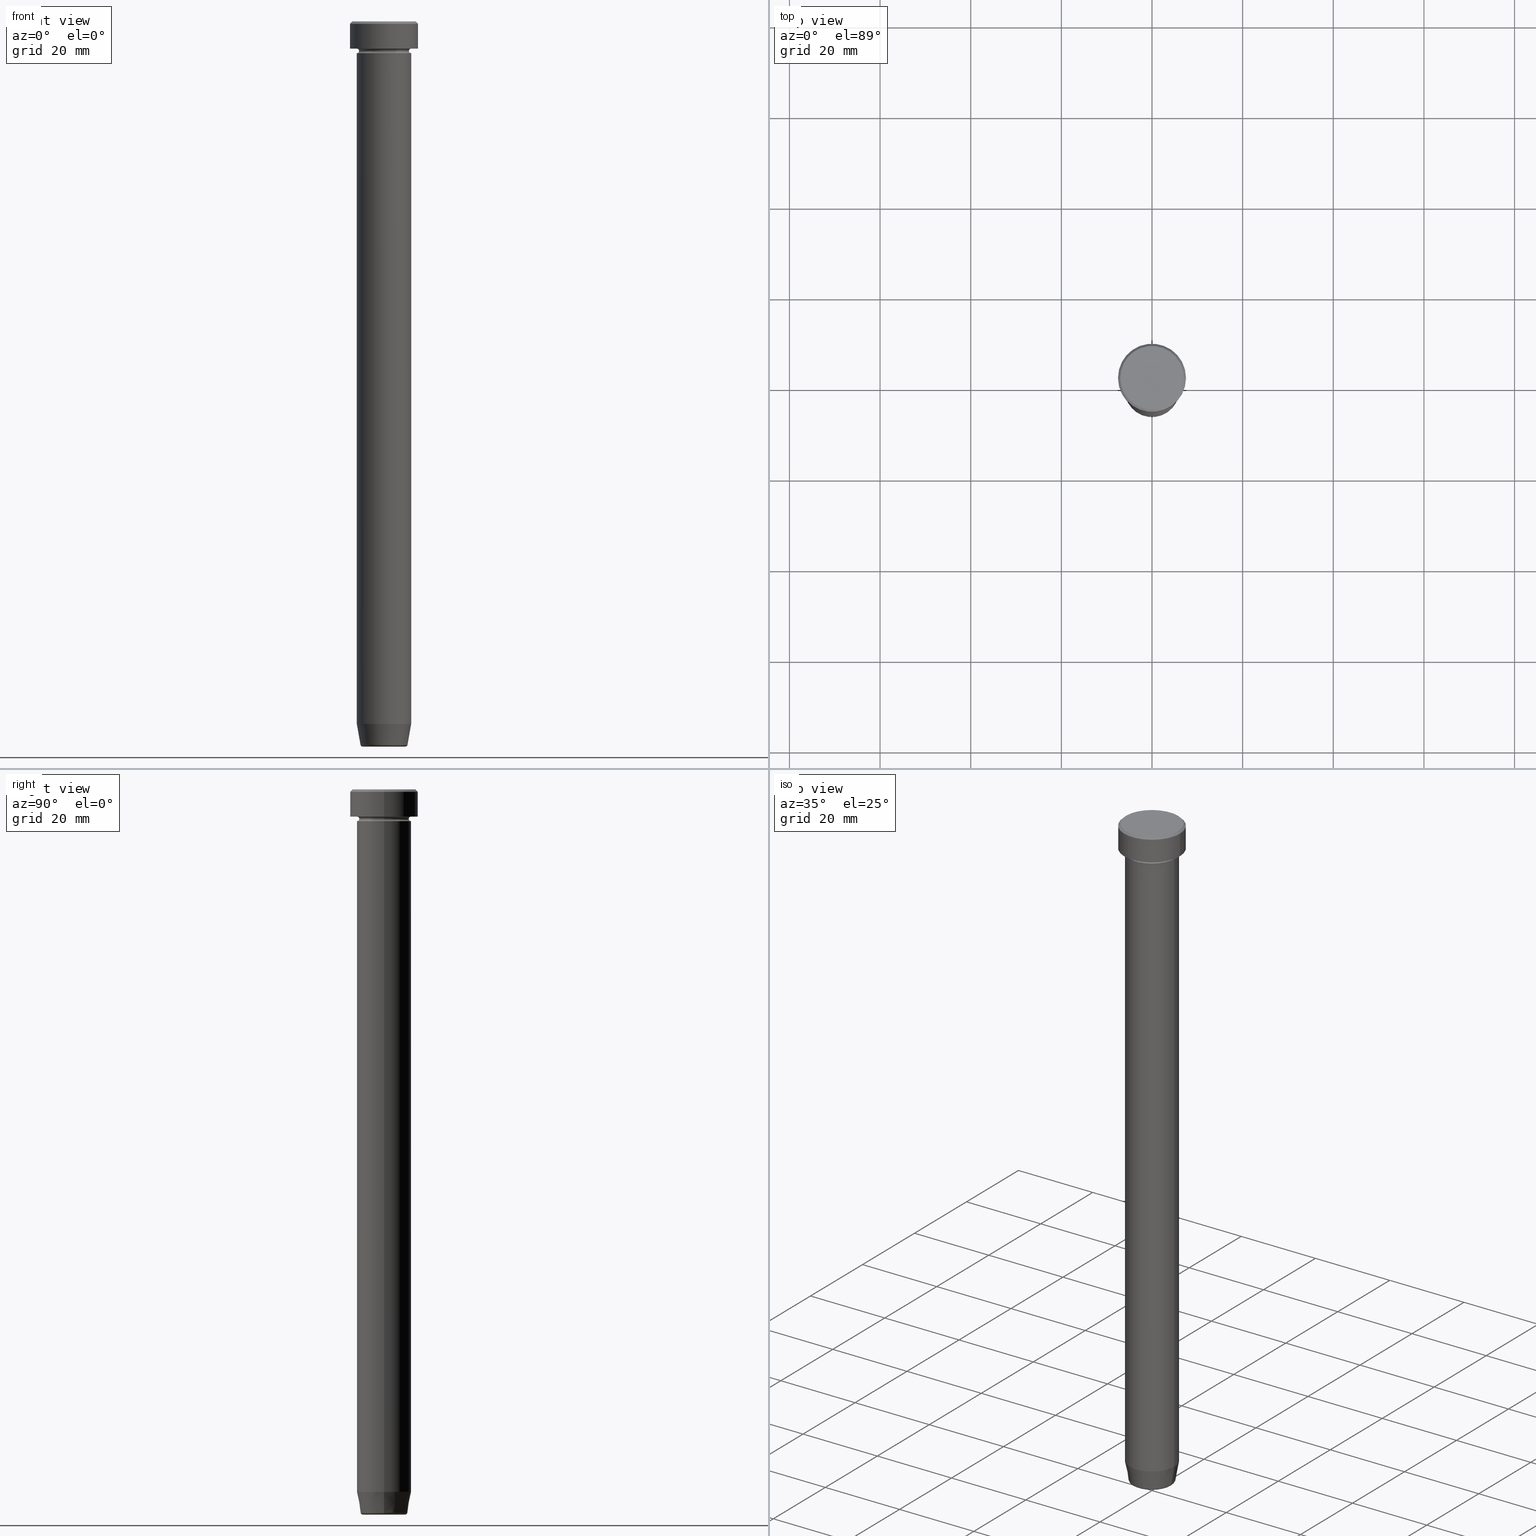
[diagram: canonical four-view strip — front | top / right | iso, engineering-drawing reading convention]
A machine part, canonical four-view strip (front | top / right | iso — engineering-drawing reading convention). The complete STEP part file that produces these views, byte-faithful:
ISO-10303-21;
HEADER;
FILE_DESCRIPTION (( 'STEP AP203' ),
    '1' );
FILE_NAME ('e89e.STEP',
    '2024-01-02T23:22:12',
    ( '' ),
    ( '' ),
    'SwSTEP 2.0',
    'SolidWorks 2019',
    '' );
FILE_SCHEMA (( 'CONFIG_CONTROL_DESIGN' ));
ENDSEC;

DATA;
#1 = DIRECTION ( 'NONE',  ( 0.000000000000000000, -0.000000000000000000, 1.000000000000000000 ) ) ;
#2 = CIRCLE ( 'NONE', #233, 7.500000000000000000 ) ;
#3 = CARTESIAN_POINT ( 'NONE',  ( -7.000000000000001776, 0.000000000000000000, 0.000000000000000000 ) ) ;
#4 = CIRCLE ( 'NONE', #353, 6.000000000000000000 ) ;
#5 = COORDINATED_UNIVERSAL_TIME_OFFSET ( 1, 0, .AHEAD. ) ;
#6 = CC_DESIGN_PERSON_AND_ORGANIZATION_ASSIGNMENT ( #59, #567, ( #46 ) ) ;
#7 = DATE_AND_TIME ( #149, #478 ) ;
#8 = DIRECTION ( 'NONE',  ( 1.000000000000000000, 0.000000000000000000, 0.000000000000000000 ) ) ;
#9 = SECURITY_CLASSIFICATION_LEVEL ( 'unclassified' ) ;
#10 = EDGE_CURVE ( 'NONE', #22, #585, #368, .T. ) ;
#11 = ORIENTED_EDGE ( 'NONE', *, *, #246, .T. ) ;
#12 = FACE_OUTER_BOUND ( 'NONE', #434, .T. ) ;
#13 = DATE_TIME_ROLE ( 'classification_date' ) ;
#14 = EDGE_LOOP ( 'NONE', ( #325, #348, #37, #310 ) ) ;
#15 = VERTEX_POINT ( 'NONE', #91 ) ;
#16 = VERTEX_POINT ( 'NONE', #272 ) ;
#17 = DIRECTION ( 'NONE',  ( 0.000000000000000000, 0.000000000000000000, -1.000000000000000000 ) ) ;
#18 = EDGE_CURVE ( 'NONE', #448, #388, #242, .T. ) ;
#19 = CC_DESIGN_APPROVAL ( #438, ( #344 ) ) ;
#20 = CIRCLE ( 'NONE', #324, 7.000000000000001776 ) ;
#21 = CARTESIAN_POINT ( 'NONE',  ( 5.118365096457672792, 0.000000000000000000, -159.9999999999999716 ) ) ;
#22 = VERTEX_POINT ( 'NONE', #446 ) ;
#23 = DIRECTION ( 'NONE',  ( -0.7071067811865469066, 0.000000000000000000, -0.7071067811865481278 ) ) ;
#24 = DIRECTION ( 'NONE',  ( -0.000000000000000000, -0.000000000000000000, 1.000000000000000000 ) ) ;
#25 = APPLICATION_CONTEXT ( 'configuration controlled 3d designs of mechanical parts and assemblies' ) ;
#26 = CARTESIAN_POINT ( 'NONE',  ( 0.000000000000000000, 0.000000000000000000, -154.9999999999999716 ) ) ;
#27 = CARTESIAN_POINT ( 'NONE',  ( 0.000000000000000000, 0.000000000000000000, 0.000000000000000000 ) ) ;
#28 = EDGE_CURVE ( 'NONE', #60, #16, #593, .T. ) ;
#29 = ORIENTED_EDGE ( 'NONE', *, *, #53, .F. ) ;
#30 = AXIS2_PLACEMENT_3D ( 'NONE', #320, #131, #42 ) ;
#31 = VERTEX_POINT ( 'NONE', #63 ) ;
#32 = CARTESIAN_POINT ( 'NONE',  ( 0.000000000000000000, 0.000000000000000000, -17.00000000000000000 ) ) ;
#33 = DIRECTION ( 'NONE',  ( 1.224646799147353207E-16, 1.000000000000000000, 0.000000000000000000 ) ) ;
#34 = PRODUCT_DEFINITION_SHAPE ( 'NONE', 'NONE',  #503 ) ;
#35 = ORIENTED_EDGE ( 'NONE', *, *, #416, .F. ) ;
#36 = CARTESIAN_POINT ( 'NONE',  ( 0.000000000000000000, 0.000000000000000000, -6.500000000000000888 ) ) ;
#37 = ORIENTED_EDGE ( 'NONE', *, *, #442, .T. ) ;
#38 = DIRECTION ( 'NONE',  ( -1.000000000000000000, 0.000000000000000000, 0.000000000000000000 ) ) ;
#39 = CARTESIAN_POINT ( 'NONE',  ( 0.000000000000000000, 0.000000000000000000, -6.500000000000000888 ) ) ;
#40 = ADVANCED_FACE ( 'NONE', ( #52 ), #43, .T. ) ;
#41 = DIRECTION ( 'NONE',  ( 1.000000000000000000, 0.000000000000000000, 0.000000000000000000 ) ) ;
#42 = DIRECTION ( 'NONE',  ( 1.000000000000000000, 0.000000000000000000, 0.000000000000000000 ) ) ;
#43 = TOROIDAL_SURFACE ( 'NONE', #401, 4.698815280869035327, 0.5000000000000000000 ) ;
#44 = CIRCLE ( 'NONE', #102, 6.000000000000000000 ) ;
#45 = APPROVAL ( #98, 'NEUR�EN�' ) ;
#46 = PRODUCT ( 'e89e', 'e89e', '', ( #470 ) ) ;
#47 = ORIENTED_EDGE ( 'NONE', *, *, #53, .T. ) ;
#48 = CARTESIAN_POINT ( 'NONE',  ( 6.000000000000000000, 7.347880794884119736E-16, -6.500000000000000888 ) ) ;
#49 = VERTEX_POINT ( 'NONE', #286 ) ;
#50 =( LENGTH_UNIT ( ) NAMED_UNIT ( * ) SI_UNIT ( .MILLI., .METRE. ) );
#51 = DIRECTION ( 'NONE',  ( -1.000000000000000000, 0.000000000000000000, 0.000000000000000000 ) ) ;
#52 = FACE_OUTER_BOUND ( 'NONE', #270, .T. ) ;
#53 = EDGE_CURVE ( 'NONE', #306, #565, #468, .T. ) ;
#54 = CALENDAR_DATE ( 2024, 3, 1 ) ;
#55 = AXIS2_PLACEMENT_3D ( 'NONE', #58, #241, #474 ) ;
#56 = TOROIDAL_SURFACE ( 'NONE', #79, 6.000000000000000000, 0.5000000000000000000 ) ;
#57 = CIRCLE ( 'NONE', #553, 0.5000000000000004441 ) ;
#58 = CARTESIAN_POINT ( 'NONE',  ( 6.000000000000000000, 0.000000000000000000, -6.500000000000000888 ) ) ;
#59 = PERSON_AND_ORGANIZATION ( #303, #77 ) ;
#60 = VERTEX_POINT ( 'NONE', #186 ) ;
#61 = COORDINATED_UNIVERSAL_TIME_OFFSET ( 1, 0, .AHEAD. ) ;
#62 = EDGE_CURVE ( 'NONE', #448, #165, #109, .T. ) ;
#63 = CARTESIAN_POINT ( 'NONE',  ( 7.000000000000001776, 8.878689293818310074E-16, 0.000000000000000000 ) ) ;
#64 = APPLICATION_CONTEXT ( 'configuration controlled 3d designs of mechanical parts and assemblies' ) ;
#65 = ORIENTED_EDGE ( 'NONE', *, *, #550, .T. ) ;
#66 = DIRECTION ( 'NONE',  ( 0.000000000000000000, 0.000000000000000000, 1.000000000000000000 ) ) ;
#67 = ORIENTED_EDGE ( 'NONE', *, *, #236, .F. ) ;
#68 = DIRECTION ( 'NONE',  ( 0.7071067811865469066, 8.659560562354925463E-17, -0.7071067811865481278 ) ) ;
#69 = ORIENTED_EDGE ( 'NONE', *, *, #89, .F. ) ;
#70 = PERSON_AND_ORGANIZATION_ROLE ( 'creator' ) ;
#71 = ORIENTED_EDGE ( 'NONE', *, *, #28, .T. ) ;
#72 = DIRECTION ( 'NONE',  ( -0.000000000000000000, -0.000000000000000000, 1.000000000000000000 ) ) ;
#73 = FACE_OUTER_BOUND ( 'NONE', #414, .T. ) ;
#74 = EDGE_LOOP ( 'NONE', ( #443, #580, #251, #69 ) ) ;
#75 = DIRECTION ( 'NONE',  ( -0.000000000000000000, -0.000000000000000000, 1.000000000000000000 ) ) ;
#76 = CARTESIAN_POINT ( 'NONE',  ( 0.000000000000000000, 0.000000000000000000, -7.000000000000000000 ) ) ;
#77 = ORGANIZATION ( 'NEUR�EN�', 'NEUR�EN�', '' ) ;
#78 = CIRCLE ( 'NONE', #554, 7.500000000000000000 ) ;
#79 = AXIS2_PLACEMENT_3D ( 'NONE', #150, #72, #249 ) ;
#80 = FACE_BOUND ( 'NONE', #182, .T. ) ;
#81 = DIRECTION ( 'NONE',  ( 0.000000000000000000, 0.000000000000000000, -1.000000000000000000 ) ) ;
#82 = DIRECTION ( 'NONE',  ( 1.000000000000000000, 0.000000000000000000, 0.000000000000000000 ) ) ;
#83 = EDGE_CURVE ( 'NONE', #250, #95, #377, .T. ) ;
#84 = DIRECTION ( 'NONE',  ( -0.000000000000000000, -0.000000000000000000, 1.000000000000000000 ) ) ;
#85 = CIRCLE ( 'NONE', #115, 5.500000000000000000 ) ;
#86 = ORIENTED_EDGE ( 'NONE', *, *, #10, .T. ) ;
#87 = AXIS2_PLACEMENT_3D ( 'NONE', #457, #326, #366 ) ;
#88 = LINE ( 'NONE', #479, #198 ) ;
#89 = EDGE_CURVE ( 'NONE', #585, #565, #424, .T. ) ;
#90 = DIRECTION ( 'NONE',  ( 0.000000000000000000, 0.000000000000000000, -1.000000000000000000 ) ) ;
#91 = CARTESIAN_POINT ( 'NONE',  ( 7.500000000000000000, 0.000000000000000000, -6.000000000000000000 ) ) ;
#92 = ORIENTED_EDGE ( 'NONE', *, *, #246, .F. ) ;
#93 = CLOSED_SHELL ( 'NONE', ( #40, #309, #183, #338, #202, #317, #289, #574 ) ) ;
#94 = AXIS2_PLACEMENT_3D ( 'NONE', #461, #552, #327 ) ;
#95 = VERTEX_POINT ( 'NONE', #323 ) ;
#96 = DIRECTION ( 'NONE',  ( -0.000000000000000000, -0.000000000000000000, 1.000000000000000000 ) ) ;
#97 = ADVANCED_FACE ( 'NONE', ( #261 ), #268, .T. ) ;
#98 = APPROVAL_STATUS ( 'not_yet_approved' ) ;
#99 = CARTESIAN_POINT ( 'NONE',  ( 0.000000000000000000, 0.000000000000000000, -159.9999999999999716 ) ) ;
#100 = PERSON_AND_ORGANIZATION ( #303, #77 ) ;
#101 = FACE_OUTER_BOUND ( 'NONE', #488, .T. ) ;
#102 = AXIS2_PLACEMENT_3D ( 'NONE', #356, #118, #534 ) ;
#103 = EDGE_CURVE ( 'NONE', #49, #599, #78, .T. ) ;
#104 = EDGE_LOOP ( 'NONE', ( #491, #439, #267, #376 ) ) ;
#105 = DIRECTION ( 'NONE',  ( -0.000000000000000000, -0.000000000000000000, 1.000000000000000000 ) ) ;
#106 = CARTESIAN_POINT ( 'NONE',  ( 0.000000000000000000, 0.000000000000000000, -0.4999999999999987232 ) ) ;
#107 = PERSON_AND_ORGANIZATION_ROLE ( 'design_supplier' ) ;
#108 = ORIENTED_EDGE ( 'NONE', *, *, #236, .T. ) ;
#109 = CIRCLE ( 'NONE', #257, 0.5000000000000004441 ) ;
#110 = CIRCLE ( 'NONE', #563, 7.500000000000000000 ) ;
#111 = EDGE_CURVE ( 'NONE', #203, #599, #125, .T. ) ;
#112 = CARTESIAN_POINT ( 'NONE',  ( 0.000000000000000000, 0.000000000000000000, -6.000000000000000000 ) ) ;
#113 = EDGE_LOOP ( 'NONE', ( #231, #472 ) ) ;
#114 = FACE_OUTER_BOUND ( 'NONE', #412, .T. ) ;
#115 = AXIS2_PLACEMENT_3D ( 'NONE', #36, #159, #584 ) ;
#116 = AXIS2_PLACEMENT_3D ( 'NONE', #413, #130, #508 ) ;
#117 = ORIENTED_EDGE ( 'NONE', *, *, #103, .T. ) ;
#118 = DIRECTION ( 'NONE',  ( -0.000000000000000000, -0.000000000000000000, 1.000000000000000000 ) ) ;
#119 = ADVANCED_FACE ( 'NONE', ( #295 ), #579, .T. ) ;
#120 = CARTESIAN_POINT ( 'NONE',  ( 0.000000000000000000, 0.000000000000000000, -159.5868240888334242 ) ) ;
#121 = ORIENTED_EDGE ( 'NONE', *, *, #18, .F. ) ;
#122 = DIRECTION ( 'NONE',  ( -0.000000000000000000, -0.000000000000000000, 1.000000000000000000 ) ) ;
#123 = CARTESIAN_POINT ( 'NONE',  ( -7.500000000000000000, 9.184850993605147944E-16, 0.000000000000000000 ) ) ;
#124 = DIRECTION ( 'NONE',  ( -0.000000000000000000, -0.000000000000000000, 1.000000000000000000 ) ) ;
#125 = LINE ( 'NONE', #123, #527 ) ;
#126 = CC_DESIGN_DATE_AND_TIME_ASSIGNMENT ( #426, #475, ( #503 ) ) ;
#127 = AXIS2_PLACEMENT_3D ( 'NONE', #32, #577, #201 ) ;
#128 = ORIENTED_EDGE ( 'NONE', *, *, #392, .T. ) ;
#129 = ORIENTED_EDGE ( 'NONE', *, *, #157, .F. ) ;
#130 = DIRECTION ( 'NONE',  ( -0.000000000000000000, -0.000000000000000000, 1.000000000000000000 ) ) ;
#131 = DIRECTION ( 'NONE',  ( -0.000000000000000000, -0.000000000000000000, 1.000000000000000000 ) ) ;
#132 = DIRECTION ( 'NONE',  ( -0.000000000000000000, -0.000000000000000000, 1.000000000000000000 ) ) ;
#133 = CIRCLE ( 'NONE', #545, 6.000000000000000000 ) ;
#134 = CIRCLE ( 'NONE', #127, 6.000000000000000000 ) ;
#135 = LINE ( 'NONE', #315, #511 ) ;
#136 = EDGE_CURVE ( 'NONE', #306, #60, #85, .T. ) ;
#137 = SHAPE_DEFINITION_REPRESENTATION ( #34, #189 ) ;
#138 = DIRECTION ( 'NONE',  ( -1.000000000000000000, 0.000000000000000000, -0.000000000000000000 ) ) ;
#139 = ORIENTED_EDGE ( 'NONE', *, *, #153, .F. ) ;
#140 = EDGE_CURVE ( 'NONE', #388, #250, #490, .T. ) ;
#141 = PERSON_AND_ORGANIZATION_ROLE ( 'creator' ) ;
#142 = CC_DESIGN_SECURITY_CLASSIFICATION ( #291, ( #344 ) ) ;
#143 = DESIGN_CONTEXT ( 'detailed design', #64, 'design' ) ;
#144 = CARTESIAN_POINT ( 'NONE',  ( -6.000000000000000000, 7.347880794884119736E-16, 0.000000000000000000 ) ) ;
#145 = CIRCLE ( 'NONE', #199, 6.000000000000000000 ) ;
#146 = APPROVAL_DATE_TIME ( #7, #560 ) ;
#147 = ORIENTED_EDGE ( 'NONE', *, *, #10, .F. ) ;
#148 = DIRECTION ( 'NONE',  ( 1.000000000000000000, 0.000000000000000000, 0.000000000000000000 ) ) ;
#149 = CALENDAR_DATE ( 2024, 3, 1 ) ;
#150 = CARTESIAN_POINT ( 'NONE',  ( 0.000000000000000000, 0.000000000000000000, -6.500000000000000888 ) ) ;
#151 = DIRECTION ( 'NONE',  ( -0.000000000000000000, -0.000000000000000000, 1.000000000000000000 ) ) ;
#152 = AXIS2_PLACEMENT_3D ( 'NONE', #245, #539, #340 ) ;
#153 = EDGE_CURVE ( 'NONE', #250, #165, #322, .T. ) ;
#154 = ORIENTED_EDGE ( 'NONE', *, *, #83, .T. ) ;
#155 = ORIENTED_EDGE ( 'NONE', *, *, #454, .T. ) ;
#156 = CARTESIAN_POINT ( 'NONE',  ( -6.000000000000000000, 7.347880794884119736E-16, -6.500000000000000888 ) ) ;
#157 = EDGE_CURVE ( 'NONE', #168, #565, #133, .T. ) ;
#158 = CARTESIAN_POINT ( 'NONE',  ( 0.000000000000000000, 0.000000000000000000, -0.4999999999999987232 ) ) ;
#159 = DIRECTION ( 'NONE',  ( -0.000000000000000000, -0.000000000000000000, 1.000000000000000000 ) ) ;
#160 = AXIS2_PLACEMENT_3D ( 'NONE', #99, #90, #365 ) ;
#161 = ORIENTED_EDGE ( 'NONE', *, *, #516, .F. ) ;
#162 = DIRECTION ( 'NONE',  ( -0.000000000000000000, -0.000000000000000000, 1.000000000000000000 ) ) ;
#163 = CARTESIAN_POINT ( 'NONE',  ( 0.000000000000000000, 0.000000000000000000, -17.00000000000000000 ) ) ;
#164 = CARTESIAN_POINT ( 'NONE',  ( 0.000000000000000000, 0.000000000000000000, 0.000000000000000000 ) ) ;
#165 = VERTEX_POINT ( 'NONE', #352 ) ;
#166 = DIRECTION ( 'NONE',  ( 1.000000000000000000, 0.000000000000000000, 0.000000000000000000 ) ) ;
#167 = LOCAL_TIME ( 0, 22, 12.00000000000000000, #61 ) ;
#168 = VERTEX_POINT ( 'NONE', #214 ) ;
#169 = AXIS2_PLACEMENT_3D ( 'NONE', #542, #124, #347 ) ;
#170 = ORIENTED_EDGE ( 'NONE', *, *, #173, .T. ) ;
#171 = PLANE ( 'NONE',  #500 ) ;
#172 = ORIENTED_EDGE ( 'NONE', *, *, #471, .T. ) ;
#173 = EDGE_CURVE ( 'NONE', #203, #15, #2, .T. ) ;
#174 = DIRECTION ( 'NONE',  ( -1.000000000000000000, 0.000000000000000000, -0.000000000000000000 ) ) ;
#175 = LOCAL_TIME ( 0, 22, 12.00000000000000000, #519 ) ;
#176 = DIRECTION ( 'NONE',  ( 0.000000000000000000, 0.000000000000000000, -1.000000000000000000 ) ) ;
#177 = VECTOR ( 'NONE', #578, 999.9999999999998863 ) ;
#178 = LOCAL_TIME ( 0, 22, 12.00000000000000000, #187 ) ;
#179 = CARTESIAN_POINT ( 'NONE',  ( 0.000000000000000000, 6.000000000000000000, -17.00000000000000000 ) ) ;
#180 = CARTESIAN_POINT ( 'NONE',  ( 0.000000000000000000, 0.000000000000000000, -159.4999999999999716 ) ) ;
#181 = PERSON_AND_ORGANIZATION ( #303, #77 ) ;
#182 = EDGE_LOOP ( 'NONE', ( #155, #108 ) ) ;
#183 = ADVANCED_FACE ( 'NONE', ( #441 ), #205, .T. ) ;
#184 = COORDINATED_UNIVERSAL_TIME_OFFSET ( 1, 0, .AHEAD. ) ;
#185 = ORIENTED_EDGE ( 'NONE', *, *, #89, .T. ) ;
#186 = CARTESIAN_POINT ( 'NONE',  ( -5.500000000000000000, 7.041719095097280880E-16, -6.500000000000000888 ) ) ;
#187 = COORDINATED_UNIVERSAL_TIME_OFFSET ( 1, 0, .AHEAD. ) ;
#188 = AXIS2_PLACEMENT_3D ( 'NONE', #357, #342, #290 ) ;
#189 = ADVANCED_BREP_SHAPE_REPRESENTATION ( 'e89e', ( #280, #498, #447 ), #370 ) ;
#190 = VECTOR ( 'NONE', #23, 1000.000000000000114 ) ;
#191 = CARTESIAN_POINT ( 'NONE',  ( 6.000000000000000000, 0.000000000000000000, 0.000000000000000000 ) ) ;
#192 = ORIENTED_EDGE ( 'NONE', *, *, #136, .T. ) ;
#193 = EDGE_LOOP ( 'NONE', ( #591, #238, #483, #316 ) ) ;
#194 = DATE_AND_TIME ( #380, #167 ) ;
#195 = ADVANCED_FACE ( 'NONE', ( #445 ), #402, .T. ) ;
#196 = VERTEX_POINT ( 'NONE', #540 ) ;
#197 = CARTESIAN_POINT ( 'NONE',  ( 4.698815280869035327, 0.000000000000000000, -159.9999999999999716 ) ) ;
#198 = VECTOR ( 'NONE', #68, 1000.000000000000114 ) ;
#199 = AXIS2_PLACEMENT_3D ( 'NONE', #112, #122, #489 ) ;
#200 = ORIENTED_EDGE ( 'NONE', *, *, #596, .T. ) ;
#201 = DIRECTION ( 'NONE',  ( 1.000000000000000000, 0.000000000000000000, 0.000000000000000000 ) ) ;
#202 = ADVANCED_FACE ( 'NONE', ( #73 ), #308, .T. ) ;
#203 = VERTEX_POINT ( 'NONE', #543 ) ;
#204 = DIRECTION ( 'NONE',  ( -0.000000000000000000, -0.000000000000000000, 1.000000000000000000 ) ) ;
#205 = CYLINDRICAL_SURFACE ( 'NONE', #223, 6.000000000000000000 ) ;
#206 = ORIENTED_EDGE ( 'NONE', *, *, #544, .T. ) ;
#207 = DIRECTION ( 'NONE',  ( -0.000000000000000000, -0.000000000000000000, 1.000000000000000000 ) ) ;
#208 = CC_DESIGN_APPROVAL ( #560, ( #503 ) ) ;
#209 = DIRECTION ( 'NONE',  ( 1.000000000000000000, 0.000000000000000000, 0.000000000000000000 ) ) ;
#210 = CIRCLE ( 'NONE', #556, 5.191219157375138060 ) ;
#211 = AXIS2_PLACEMENT_3D ( 'NONE', #163, #204, #307 ) ;
#212 = CARTESIAN_POINT ( 'NONE',  ( -6.000000000000000000, 0.000000000000000000, -6.500000000000000888 ) ) ;
#213 = DIRECTION ( 'NONE',  ( -0.000000000000000000, -0.000000000000000000, 1.000000000000000000 ) ) ;
#214 = CARTESIAN_POINT ( 'NONE',  ( -6.000000000000000000, 7.347880794884119736E-16, -7.000000000000000000 ) ) ;
#215 = CARTESIAN_POINT ( 'NONE',  ( 0.000000000000000000, 0.000000000000000000, -17.00000000000000000 ) ) ;
#216 = DIRECTION ( 'NONE',  ( 1.000000000000000000, 0.000000000000000000, 0.000000000000000000 ) ) ;
#217 = EDGE_CURVE ( 'NONE', #31, #49, #88, .T. ) ;
#218 = DIRECTION ( 'NONE',  ( -0.000000000000000000, -0.000000000000000000, 1.000000000000000000 ) ) ;
#219 = ORIENTED_EDGE ( 'NONE', *, *, #157, .T. ) ;
#220 = ORIENTED_EDGE ( 'NONE', *, *, #422, .F. ) ;
#221 = FACE_OUTER_BOUND ( 'NONE', #14, .T. ) ;
#222 = FACE_OUTER_BOUND ( 'NONE', #399, .T. ) ;
#223 = AXIS2_PLACEMENT_3D ( 'NONE', #27, #84, #263 ) ;
#224 = AXIS2_PLACEMENT_3D ( 'NONE', #371, #363, #549 ) ;
#225 = CARTESIAN_POINT ( 'NONE',  ( -6.000000000000000000, 7.347880794884119736E-16, -17.00000000000000000 ) ) ;
#226 = FACE_OUTER_BOUND ( 'NONE', #548, .T. ) ;
#227 = ADVANCED_FACE ( 'NONE', ( #12 ), #385, .T. ) ;
#228 = CARTESIAN_POINT ( 'NONE',  ( -7.500000000000000000, 9.184850993605147944E-16, -0.4999999999999987232 ) ) ;
#229 = CARTESIAN_POINT ( 'NONE',  ( -5.191219157375138060, 6.852645359818000008E-16, -159.5868240888334242 ) ) ;
#230 = CARTESIAN_POINT ( 'NONE',  ( 4.698815280869035327, 0.000000000000000000, -159.4999999999999716 ) ) ;
#231 = ORIENTED_EDGE ( 'NONE', *, *, #397, .F. ) ;
#232 = CARTESIAN_POINT ( 'NONE',  ( 0.000000000000000000, 0.000000000000000000, -17.00000000000000000 ) ) ;
#233 = AXIS2_PLACEMENT_3D ( 'NONE', #305, #24, #82 ) ;
#234 = PERSON_AND_ORGANIZATION ( #303, #77 ) ;
#235 = VECTOR ( 'NONE', #294, 1000.000000000000000 ) ;
#236 = EDGE_CURVE ( 'NONE', #196, #16, #492, .T. ) ;
#237 = VERTEX_POINT ( 'NONE', #3 ) ;
#238 = ORIENTED_EDGE ( 'NONE', *, *, #111, .T. ) ;
#239 = CC_DESIGN_PERSON_AND_ORGANIZATION_ASSIGNMENT ( #100, #107, ( #344 ) ) ;
#240 = DIRECTION ( 'NONE',  ( 0.000000000000000000, -1.000000000000000000, 0.000000000000000000 ) ) ;
#241 = DIRECTION ( 'NONE',  ( 0.000000000000000000, -1.000000000000000000, 0.000000000000000000 ) ) ;
#242 = CIRCLE ( 'NONE', #570, 4.698815280869035327 ) ;
#243 = FACE_OUTER_BOUND ( 'NONE', #581, .T. ) ;
#244 = VECTOR ( 'NONE', #162, 1000.000000000000000 ) ;
#245 = CARTESIAN_POINT ( 'NONE',  ( 0.000000000000000000, 0.000000000000000000, 0.000000000000000000 ) ) ;
#246 = EDGE_CURVE ( 'NONE', #388, #448, #427, .T. ) ;
#247 = ORIENTED_EDGE ( 'NONE', *, *, #454, .F. ) ;
#248 = DATE_AND_TIME ( #481, #175 ) ;
#249 = DIRECTION ( 'NONE',  ( 1.000000000000000000, 0.000000000000000000, 0.000000000000000000 ) ) ;
#250 = VERTEX_POINT ( 'NONE', #229 ) ;
#251 = ORIENTED_EDGE ( 'NONE', *, *, #494, .F. ) ;
#252 = DIRECTION ( 'NONE',  ( 1.000000000000000000, 0.000000000000000000, 0.000000000000000000 ) ) ;
#253 = ORIENTED_EDGE ( 'NONE', *, *, #217, .T. ) ;
#254 = PLANE ( 'NONE',  #594 ) ;
#255 = CC_DESIGN_APPROVAL ( #45, ( #291 ) ) ;
#256 = ADVANCED_FACE ( 'NONE', ( #505 ), #547, .T. ) ;
#257 = AXIS2_PLACEMENT_3D ( 'NONE', #230, #240, #176 ) ;
#258 = AXIS2_PLACEMENT_3D ( 'NONE', #531, #444, #493 ) ;
#259 = ORIENTED_EDGE ( 'NONE', *, *, #485, .T. ) ;
#260 = CARTESIAN_POINT ( 'NONE',  ( 0.000000000000000000, 7.500000000000000000, -6.000000000000000000 ) ) ;
#261 = FACE_OUTER_BOUND ( 'NONE', #389, .T. ) ;
#262 = DIRECTION ( 'NONE',  ( -1.000000000000000000, 0.000000000000000000, -0.000000000000000000 ) ) ;
#263 = DIRECTION ( 'NONE',  ( 1.000000000000000000, 0.000000000000000000, 0.000000000000000000 ) ) ;
#264 = CARTESIAN_POINT ( 'NONE',  ( 0.000000000000000000, 0.000000000000000000, -6.000000000000000000 ) ) ;
#265 = CIRCLE ( 'NONE', #459, 5.500000000000000000 ) ;
#266 = EDGE_CURVE ( 'NONE', #15, #49, #135, .T. ) ;
#267 = ORIENTED_EDGE ( 'NONE', *, *, #408, .T. ) ;
#268 = CYLINDRICAL_SURFACE ( 'NONE', #152, 7.500000000000000000 ) ;
#269 = CC_DESIGN_PERSON_AND_ORGANIZATION_ASSIGNMENT ( #562, #141, ( #344 ) ) ;
#270 = EDGE_LOOP ( 'NONE', ( #92, #487, #435, #393 ) ) ;
#271 = CARTESIAN_POINT ( 'NONE',  ( 0.000000000000000000, 0.000000000000000000, 0.000000000000000000 ) ) ;
#272 = CARTESIAN_POINT ( 'NONE',  ( -6.000000000000000000, 0.000000000000000000, -6.000000000000000000 ) ) ;
#273 = FACE_OUTER_BOUND ( 'NONE', #529, .T. ) ;
#274 = ADVANCED_FACE ( 'NONE', ( #415 ), #469, .F. ) ;
#275 = CLOSED_SHELL ( 'NONE', ( #524, #331, #372, #195, #119, #297, #256, #97, #532, #227, #378, #274, #568 ) ) ;
#276 = DIRECTION ( 'NONE',  ( 0.000000000000000000, 0.000000000000000000, -1.000000000000000000 ) ) ;
#277 = CIRCLE ( 'NONE', #480, 6.000000000000000000 ) ;
#278 = CARTESIAN_POINT ( 'NONE',  ( 0.000000000000000000, 0.000000000000000000, 0.000000000000000000 ) ) ;
#279 = DIRECTION ( 'NONE',  ( 0.000000000000000000, 0.000000000000000000, -1.000000000000000000 ) ) ;
#280 = MANIFOLD_SOLID_BREP ( 'Zkosen�1', #275 ) ;
#281 = DIRECTION ( 'NONE',  ( -1.000000000000000000, -1.224646799147351482E-16, 0.000000000000000000 ) ) ;
#282 = DIRECTION ( 'NONE',  ( 0.000000000000000000, 0.000000000000000000, -1.000000000000000000 ) ) ;
#283 = PERSON_AND_ORGANIZATION ( #303, #77 ) ;
#284 = CARTESIAN_POINT ( 'NONE',  ( 6.000000000000000000, 0.000000000000000000, 0.000000000000000000 ) ) ;
#285 = CIRCLE ( 'NONE', #211, 6.000000000000000000 ) ;
#286 = CARTESIAN_POINT ( 'NONE',  ( 7.500000000000000000, 0.000000000000000000, -0.4999999999999987232 ) ) ;
#287 = APPLICATION_PROTOCOL_DEFINITION ( 'international standard', 'config_control_design', 1994, #64 ) ;
#288 = VERTEX_POINT ( 'NONE', #417 ) ;
#289 = ADVANCED_FACE ( 'NONE', ( #222 ), #407, .F. ) ;
#290 = DIRECTION ( 'NONE',  ( 1.000000000000000000, 0.000000000000000000, 0.000000000000000000 ) ) ;
#291 = SECURITY_CLASSIFICATION ( '', '', #9 ) ;
#292 = APPLICATION_PROTOCOL_DEFINITION ( 'international standard', 'config_control_design', 1994, #25 ) ;
#293 = ORIENTED_EDGE ( 'NONE', *, *, #136, .F. ) ;
#294 = DIRECTION ( 'NONE',  ( -0.000000000000000000, -0.000000000000000000, 1.000000000000000000 ) ) ;
#295 = FACE_OUTER_BOUND ( 'NONE', #193, .T. ) ;
#296 = EDGE_LOOP ( 'NONE', ( #206, #128, #533, #384 ) ) ;
#297 = ADVANCED_FACE ( 'NONE', ( #226 ), #171, .T. ) ;
#298 = ORIENTED_EDGE ( 'NONE', *, *, #354, .T. ) ;
#299 = FACE_OUTER_BOUND ( 'NONE', #113, .T. ) ;
#300 = LINE ( 'NONE', #349, #244 ) ;
#301 = APPROVAL_PERSON_ORGANIZATION ( #523, #438, #337 ) ;
#302 = AXIS2_PLACEMENT_3D ( 'NONE', #156, #404, #538 ) ;
#303 = PERSON ( 'NEUR�EN�', 'NEUR�EN�', 'NEUR�EN�', ('NEUR�EN�'), ('NEUR�EN�'), ('NEUR�EN�') ) ;
#304 = DIRECTION ( 'NONE',  ( 1.000000000000000000, 0.000000000000000000, 0.000000000000000000 ) ) ;
#305 = CARTESIAN_POINT ( 'NONE',  ( 0.000000000000000000, 0.000000000000000000, -6.000000000000000000 ) ) ;
#306 = VERTEX_POINT ( 'NONE', #367 ) ;
#307 = DIRECTION ( 'NONE',  ( 1.000000000000000000, 0.000000000000000000, 0.000000000000000000 ) ) ;
#308 = CYLINDRICAL_SURFACE ( 'NONE', #188, 6.000000000000000000 ) ;
#309 = ADVANCED_FACE ( 'NONE', ( #359 ), #411, .T. ) ;
#310 = ORIENTED_EDGE ( 'NONE', *, *, #103, .F. ) ;
#311 = DIRECTION ( 'NONE',  ( -0.000000000000000000, -0.000000000000000000, 1.000000000000000000 ) ) ;
#312 = AXIS2_PLACEMENT_3D ( 'NONE', #212, #515, #419 ) ;
#313 = AXIS2_PLACEMENT_3D ( 'NONE', #271, #321, #166 ) ;
#314 = APPROVAL_PERSON_ORGANIZATION ( #332, #560, #334 ) ;
#315 = CARTESIAN_POINT ( 'NONE',  ( 7.500000000000000000, 0.000000000000000000, 0.000000000000000000 ) ) ;
#316 = ORIENTED_EDGE ( 'NONE', *, *, #266, .F. ) ;
#317 = ADVANCED_FACE ( 'NONE', ( #467 ), #582, .T. ) ;
#318 = CARTESIAN_POINT ( 'NONE',  ( 0.000000000000000000, 1.347111479062088365E-14, -159.9999999999999716 ) ) ;
#319 = EDGE_LOOP ( 'NONE', ( #65, #154, #536, #486 ) ) ;
#320 = CARTESIAN_POINT ( 'NONE',  ( 0.000000000000000000, 0.000000000000000000, -159.4999999999999716 ) ) ;
#321 = DIRECTION ( 'NONE',  ( 0.000000000000000000, -0.000000000000000000, 1.000000000000000000 ) ) ;
#322 = CIRCLE ( 'NONE', #458, 5.191219157375138060 ) ;
#323 = CARTESIAN_POINT ( 'NONE',  ( -6.000000000000000000, 7.347880794884119736E-16, -154.9999999999999716 ) ) ;
#324 = AXIS2_PLACEMENT_3D ( 'NONE', #449, #213, #586 ) ;
#325 = ORIENTED_EDGE ( 'NONE', *, *, #217, .F. ) ;
#326 = DIRECTION ( 'NONE',  ( 0.000000000000000000, 0.000000000000000000, -1.000000000000000000 ) ) ;
#327 = DIRECTION ( 'NONE',  ( -1.000000000000000000, 0.000000000000000000, 0.000000000000000000 ) ) ;
#328 = DIRECTION ( 'NONE',  ( -0.1736481776669306087, 2.126576849575774688E-17, 0.9848077530122081313 ) ) ;
#329 = EDGE_LOOP ( 'NONE', ( #200, #339 ) ) ;
#330 = CARTESIAN_POINT ( 'NONE',  ( 6.000000000000000000, 0.000000000000000000, -17.00000000000000000 ) ) ;
#331 = ADVANCED_FACE ( 'NONE', ( #555 ), #571, .F. ) ;
#332 = PERSON_AND_ORGANIZATION ( #303, #77 ) ;
#333 = VECTOR ( 'NONE', #132, 1000.000000000000000 ) ;
#334 = APPROVAL_ROLE ( '' ) ;
#335 = AXIS2_PLACEMENT_3D ( 'NONE', #598, #282, #51 ) ;
#336 = CARTESIAN_POINT ( 'NONE',  ( -4.698815280869035327, 6.055899509126411236E-16, -159.9999999999999716 ) ) ;
#337 = APPROVAL_ROLE ( '' ) ;
#338 = ADVANCED_FACE ( 'NONE', ( #273 ), #464, .F. ) ;
#339 = ORIENTED_EDGE ( 'NONE', *, *, #416, .T. ) ;
#340 = DIRECTION ( 'NONE',  ( 1.000000000000000000, 0.000000000000000000, 0.000000000000000000 ) ) ;
#341 = CALENDAR_DATE ( 2024, 3, 1 ) ;
#342 = DIRECTION ( 'NONE',  ( -0.000000000000000000, -0.000000000000000000, 1.000000000000000000 ) ) ;
#343 = CONICAL_SURFACE ( 'NONE', #87, 7.000000000000001776, 0.7853981633974473908 ) ;
#344 = PRODUCT_DEFINITION_FORMATION_WITH_SPECIFIED_SOURCE ( 'LIBOVOLN�', '', #46, .NOT_KNOWN. ) ;
#345 = CC_DESIGN_PERSON_AND_ORGANIZATION_ASSIGNMENT ( #181, #70, ( #503 ) ) ;
#346 = VERTEX_POINT ( 'NONE', #330 ) ;
#347 = DIRECTION ( 'NONE',  ( 1.000000000000000000, 0.000000000000000000, 0.000000000000000000 ) ) ;
#348 = ORIENTED_EDGE ( 'NONE', *, *, #596, .F. ) ;
#349 = CARTESIAN_POINT ( 'NONE',  ( -6.000000000000000000, 7.347880794884119736E-16, 0.000000000000000000 ) ) ;
#350 = LINE ( 'NONE', #394, #190 ) ;
#351 = VECTOR ( 'NONE', #328, 999.9999999999998863 ) ;
#352 = CARTESIAN_POINT ( 'NONE',  ( 5.191219157375138060, 0.000000000000000000, -159.5868240888334242 ) ) ;
#353 = AXIS2_PLACEMENT_3D ( 'NONE', #26, #207, #400 ) ;
#354 = EDGE_CURVE ( 'NONE', #288, #346, #514, .T. ) ;
#355 = DIRECTION ( 'NONE',  ( -0.000000000000000000, -0.000000000000000000, 1.000000000000000000 ) ) ;
#356 = CARTESIAN_POINT ( 'NONE',  ( 0.000000000000000000, 0.000000000000000000, -154.9999999999999716 ) ) ;
#357 = CARTESIAN_POINT ( 'NONE',  ( 0.000000000000000000, 0.000000000000000000, 0.000000000000000000 ) ) ;
#358 = CARTESIAN_POINT ( 'NONE',  ( 6.000000000000000000, 0.000000000000000000, -7.000000000000000000 ) ) ;
#359 = FACE_OUTER_BOUND ( 'NONE', #319, .T. ) ;
#360 = TOROIDAL_SURFACE ( 'NONE', #369, 6.000000000000000000, 0.5000000000000000000 ) ;
#361 = EDGE_CURVE ( 'NONE', #22, #168, #590, .T. ) ;
#362 = ORIENTED_EDGE ( 'NONE', *, *, #266, .T. ) ;
#363 = DIRECTION ( 'NONE',  ( -0.000000000000000000, -0.000000000000000000, 1.000000000000000000 ) ) ;
#364 = CC_DESIGN_DATE_AND_TIME_ASSIGNMENT ( #248, #13, ( #291 ) ) ;
#365 = DIRECTION ( 'NONE',  ( 1.000000000000000000, 0.000000000000000000, 0.000000000000000000 ) ) ;
#366 = DIRECTION ( 'NONE',  ( -1.000000000000000000, 0.000000000000000000, 0.000000000000000000 ) ) ;
#367 = CARTESIAN_POINT ( 'NONE',  ( 5.500000000000000000, 0.000000000000000000, -6.500000000000000888 ) ) ;
#368 = CIRCLE ( 'NONE', #499, 6.000000000000000000 ) ;
#369 = AXIS2_PLACEMENT_3D ( 'NONE', #473, #105, #8 ) ;
#370 =( GEOMETRIC_REPRESENTATION_CONTEXT ( 3 ) GLOBAL_UNCERTAINTY_ASSIGNED_CONTEXT ( ( #430 ) ) GLOBAL_UNIT_ASSIGNED_CONTEXT ( ( #50, #589, #504 ) ) REPRESENTATION_CONTEXT ( 'NONE', 'WORKASPACE' ) );
#371 = CARTESIAN_POINT ( 'NONE',  ( 0.000000000000000000, 0.000000000000000000, -159.9999999999999716 ) ) ;
#372 = ADVANCED_FACE ( 'NONE', ( #101 ), #360, .F. ) ;
#373 = DIRECTION ( 'NONE',  ( 1.000000000000000000, 0.000000000000000000, 0.000000000000000000 ) ) ;
#374 = ORIENTED_EDGE ( 'NONE', *, *, #392, .F. ) ;
#375 = APPROVAL_STATUS ( 'not_yet_approved' ) ;
#376 = ORIENTED_EDGE ( 'NONE', *, *, #485, .F. ) ;
#377 = LINE ( 'NONE', #564, #351 ) ;
#378 = ADVANCED_FACE ( 'NONE', ( #243 ), #56, .F. ) ;
#379 = AXIS2_PLACEMENT_3D ( 'NONE', #522, #355, #405 ) ;
#380 = CALENDAR_DATE ( 2024, 3, 1 ) ;
#381 = AXIS2_PLACEMENT_3D ( 'NONE', #39, #410, #513 ) ;
#382 = ORIENTED_EDGE ( 'NONE', *, *, #462, .T. ) ;
#383 = DIRECTION ( 'NONE',  ( -1.000000000000000000, 1.224646799147351482E-16, 0.000000000000000000 ) ) ;
#384 = ORIENTED_EDGE ( 'NONE', *, *, #354, .F. ) ;
#385 = CYLINDRICAL_SURFACE ( 'NONE', #451, 6.000000000000000000 ) ;
#386 = APPROVAL_DATE_TIME ( #520, #45 ) ;
#387 = ORIENTED_EDGE ( 'NONE', *, *, #140, .F. ) ;
#388 = VERTEX_POINT ( 'NONE', #336 ) ;
#389 = EDGE_LOOP ( 'NONE', ( #509, #170, #362, #117 ) ) ;
#390 = AXIS2_PLACEMENT_3D ( 'NONE', #318, #1, #595 ) ;
#391 = DIRECTION ( 'NONE',  ( 1.000000000000000000, 0.000000000000000000, 0.000000000000000000 ) ) ;
#392 = EDGE_CURVE ( 'NONE', #95, #576, #300, .T. ) ;
#393 = ORIENTED_EDGE ( 'NONE', *, *, #62, .F. ) ;
#394 = CARTESIAN_POINT ( 'NONE',  ( -7.000000000000001776, 0.000000000000000000, 0.000000000000000000 ) ) ;
#395 = DIRECTION ( 'NONE',  ( -0.000000000000000000, -0.000000000000000000, 1.000000000000000000 ) ) ;
#396 = DIRECTION ( 'NONE',  ( 1.000000000000000000, 0.000000000000000000, 0.000000000000000000 ) ) ;
#397 = EDGE_CURVE ( 'NONE', #15, #203, #110, .T. ) ;
#398 = AXIS2_PLACEMENT_3D ( 'NONE', #278, #460, #216 ) ;
#399 = EDGE_LOOP ( 'NONE', ( #507, #11 ) ) ;
#400 = DIRECTION ( 'NONE',  ( 1.000000000000000000, 0.000000000000000000, 0.000000000000000000 ) ) ;
#401 = AXIS2_PLACEMENT_3D ( 'NONE', #180, #557, #465 ) ;
#402 = CYLINDRICAL_SURFACE ( 'NONE', #379, 6.000000000000000000 ) ;
#403 = AXIS2_PLACEMENT_3D ( 'NONE', #158, #17, #252 ) ;
#404 = DIRECTION ( 'NONE',  ( 1.224646799147353207E-16, 1.000000000000000000, 0.000000000000000000 ) ) ;
#405 = DIRECTION ( 'NONE',  ( 1.000000000000000000, 0.000000000000000000, 0.000000000000000000 ) ) ;
#406 = DIRECTION ( 'NONE',  ( -0.000000000000000000, -0.000000000000000000, 1.000000000000000000 ) ) ;
#407 = PLANE ( 'NONE',  #390 ) ;
#408 = EDGE_CURVE ( 'NONE', #165, #288, #437, .T. ) ;
#409 = DIRECTION ( 'NONE',  ( -0.000000000000000000, -0.000000000000000000, 1.000000000000000000 ) ) ;
#410 = DIRECTION ( 'NONE',  ( 0.000000000000000000, 0.000000000000000000, -1.000000000000000000 ) ) ;
#411 = CONICAL_SURFACE ( 'NONE', #224, 5.118365096457672792, 0.1745329251994331976 ) ;
#412 = EDGE_LOOP ( 'NONE', ( #35, #253, #220, #521 ) ) ;
#413 = CARTESIAN_POINT ( 'NONE',  ( 0.000000000000000000, 0.000000000000000000, -159.9999999999999716 ) ) ;
#414 = EDGE_LOOP ( 'NONE', ( #374, #259, #298, #455 ) ) ;
#415 = FACE_OUTER_BOUND ( 'NONE', #512, .T. ) ;
#416 = EDGE_CURVE ( 'NONE', #31, #237, #20, .T. ) ;
#417 = CARTESIAN_POINT ( 'NONE',  ( 6.000000000000000000, 0.000000000000000000, -154.9999999999999716 ) ) ;
#418 = TOROIDAL_SURFACE ( 'NONE', #30, 4.698815280869035327, 0.5000000000000000000 ) ;
#419 = DIRECTION ( 'NONE',  ( 0.000000000000000000, 0.000000000000000000, -1.000000000000000000 ) ) ;
#420 = EDGE_LOOP ( 'NONE', ( #440, #477, #247, #463 ) ) ;
#421 = APPROVAL_STATUS ( 'not_yet_approved' ) ;
#422 = EDGE_CURVE ( 'NONE', #599, #49, #528, .T. ) ;
#423 = APPROVAL_DATE_TIME ( #194, #438 ) ;
#424 = LINE ( 'NONE', #191, #333 ) ;
#425 = AXIS2_PLACEMENT_3D ( 'NONE', #164, #311, #501 ) ;
#426 = DATE_AND_TIME ( #341, #502 ) ;
#427 = CIRCLE ( 'NONE', #160, 4.698815280869035327 ) ;
#428 = DIRECTION ( 'NONE',  ( -0.000000000000000000, -0.000000000000000000, 1.000000000000000000 ) ) ;
#429 = APPROVAL_ROLE ( '' ) ;
#430 = UNCERTAINTY_MEASURE_WITH_UNIT (LENGTH_MEASURE( 1.000000000000000082E-05 ), #50, 'distance_accuracy_value', 'NONE');
#431 = EDGE_CURVE ( 'NONE', #585, #22, #134, .T. ) ;
#432 = ORIENTED_EDGE ( 'NONE', *, *, #587, .F. ) ;
#433 = DIRECTION ( 'NONE',  ( 1.000000000000000000, 0.000000000000000000, 0.000000000000000000 ) ) ;
#434 = EDGE_LOOP ( 'NONE', ( #572, #86, #185, #129 ) ) ;
#435 = ORIENTED_EDGE ( 'NONE', *, *, #550, .F. ) ;
#436 = CIRCLE ( 'NONE', #169, 6.000000000000000000 ) ;
#437 = LINE ( 'NONE', #21, #177 ) ;
#438 = APPROVAL ( #375, 'NEUR�EN�' ) ;
#439 = ORIENTED_EDGE ( 'NONE', *, *, #153, .T. ) ;
#440 = ORIENTED_EDGE ( 'NONE', *, *, #516, .T. ) ;
#441 = FACE_OUTER_BOUND ( 'NONE', #296, .T. ) ;
#442 = EDGE_CURVE ( 'NONE', #237, #599, #350, .T. ) ;
#443 = ORIENTED_EDGE ( 'NONE', *, *, #431, .T. ) ;
#444 = DIRECTION ( 'NONE',  ( 0.000000000000000000, 0.000000000000000000, -1.000000000000000000 ) ) ;
#445 = FACE_OUTER_BOUND ( 'NONE', #74, .T. ) ;
#446 = CARTESIAN_POINT ( 'NONE',  ( -6.000000000000000000, 7.347880794884119736E-16, -17.00000000000000000 ) ) ;
#447 = AXIS2_PLACEMENT_3D ( 'NONE', #466, #66, #373 ) ;
#448 = VERTEX_POINT ( 'NONE', #197 ) ;
#449 = CARTESIAN_POINT ( 'NONE',  ( 0.000000000000000000, 0.000000000000000000, 0.000000000000000000 ) ) ;
#450 = AXIS2_PLACEMENT_3D ( 'NONE', #452, #33, #383 ) ;
#451 = AXIS2_PLACEMENT_3D ( 'NONE', #569, #151, #396 ) ;
#452 = CARTESIAN_POINT ( 'NONE',  ( -4.698815280869035327, 5.754389093500935290E-16, -159.4999999999999716 ) ) ;
#453 = CIRCLE ( 'NONE', #398, 7.000000000000001776 ) ;
#454 = EDGE_CURVE ( 'NONE', #16, #196, #145, .T. ) ;
#455 = ORIENTED_EDGE ( 'NONE', *, *, #471, .F. ) ;
#456 = CARTESIAN_POINT ( 'NONE',  ( 0.000000000000000000, 0.000000000000000000, -159.9999999999999716 ) ) ;
#457 = CARTESIAN_POINT ( 'NONE',  ( 0.000000000000000000, 0.000000000000000000, 0.000000000000000000 ) ) ;
#458 = AXIS2_PLACEMENT_3D ( 'NONE', #120, #496, #526 ) ;
#459 = AXIS2_PLACEMENT_3D ( 'NONE', #573, #75, #391 ) ;
#460 = DIRECTION ( 'NONE',  ( -0.000000000000000000, -0.000000000000000000, 1.000000000000000000 ) ) ;
#461 = CARTESIAN_POINT ( 'NONE',  ( 0.000000000000000000, 0.000000000000000000, -6.000000000000000000 ) ) ;
#462 = EDGE_CURVE ( 'NONE', #60, #168, #482, .T. ) ;
#463 = ORIENTED_EDGE ( 'NONE', *, *, #28, .F. ) ;
#464 = PLANE ( 'NONE',  #546 ) ;
#465 = DIRECTION ( 'NONE',  ( 1.000000000000000000, 0.000000000000000000, 0.000000000000000000 ) ) ;
#466 = CARTESIAN_POINT ( 'NONE',  ( 0.000000000000000000, 0.000000000000000000, 0.000000000000000000 ) ) ;
#467 = FACE_OUTER_BOUND ( 'NONE', #104, .T. ) ;
#468 = CIRCLE ( 'NONE', #55, 0.5000000000000004441 ) ;
#469 = TOROIDAL_SURFACE ( 'NONE', #381, 6.000000000000000000, 0.5000000000000000000 ) ;
#470 = MECHANICAL_CONTEXT ( 'NONE', #25, 'mechanical' ) ;
#471 = EDGE_CURVE ( 'NONE', #576, #346, #285, .T. ) ;
#472 = ORIENTED_EDGE ( 'NONE', *, *, #173, .F. ) ;
#473 = CARTESIAN_POINT ( 'NONE',  ( 0.000000000000000000, 0.000000000000000000, -6.500000000000000888 ) ) ;
#474 = DIRECTION ( 'NONE',  ( 0.000000000000000000, 0.000000000000000000, -1.000000000000000000 ) ) ;
#475 = DATE_TIME_ROLE ( 'creation_date' ) ;
#476 = CC_DESIGN_PERSON_AND_ORGANIZATION_ASSIGNMENT ( #234, #561, ( #291 ) ) ;
#477 = ORIENTED_EDGE ( 'NONE', *, *, #587, .T. ) ;
#478 = LOCAL_TIME ( 0, 22, 12.00000000000000000, #5 ) ;
#479 = CARTESIAN_POINT ( 'NONE',  ( 7.000000000000001776, 8.572527594031474176E-16, 0.000000000000000000 ) ) ;
#480 = AXIS2_PLACEMENT_3D ( 'NONE', #76, #495, #304 ) ;
#481 = CALENDAR_DATE ( 2024, 3, 1 ) ;
#482 = CIRCLE ( 'NONE', #302, 0.5000000000000004441 ) ;
#483 = ORIENTED_EDGE ( 'NONE', *, *, #422, .T. ) ;
#484 = DIRECTION ( 'NONE',  ( -0.000000000000000000, -0.000000000000000000, 1.000000000000000000 ) ) ;
#485 = EDGE_CURVE ( 'NONE', #95, #288, #44, .T. ) ;
#486 = ORIENTED_EDGE ( 'NONE', *, *, #408, .F. ) ;
#487 = ORIENTED_EDGE ( 'NONE', *, *, #140, .T. ) ;
#488 = EDGE_LOOP ( 'NONE', ( #161, #382, #219, #29 ) ) ;
#489 = DIRECTION ( 'NONE',  ( -1.000000000000000000, 0.000000000000000000, 0.000000000000000000 ) ) ;
#490 = CIRCLE ( 'NONE', #450, 0.5000000000000004441 ) ;
#491 = ORIENTED_EDGE ( 'NONE', *, *, #83, .F. ) ;
#492 = CIRCLE ( 'NONE', #94, 6.000000000000000000 ) ;
#493 = DIRECTION ( 'NONE',  ( -1.000000000000000000, 0.000000000000000000, 0.000000000000000000 ) ) ;
#494 = EDGE_CURVE ( 'NONE', #565, #168, #277, .T. ) ;
#495 = DIRECTION ( 'NONE',  ( -0.000000000000000000, -0.000000000000000000, 1.000000000000000000 ) ) ;
#496 = DIRECTION ( 'NONE',  ( -0.000000000000000000, -0.000000000000000000, 1.000000000000000000 ) ) ;
#497 = DIRECTION ( 'NONE',  ( 0.000000000000000000, 0.000000000000000000, -1.000000000000000000 ) ) ;
#498 = MANIFOLD_SOLID_BREP ( 'Zaoblit4', #93 ) ;
#499 = AXIS2_PLACEMENT_3D ( 'NONE', #215, #406, #588 ) ;
#500 = AXIS2_PLACEMENT_3D ( 'NONE', #179, #279, #174 ) ;
#501 = DIRECTION ( 'NONE',  ( 1.000000000000000000, 0.000000000000000000, 0.000000000000000000 ) ) ;
#502 = LOCAL_TIME ( 0, 22, 12.00000000000000000, #184 ) ;
#503 = PRODUCT_DEFINITION ( 'NEZN�M�', '', #344, #143 ) ;
#504 =( NAMED_UNIT ( * ) SI_UNIT ( $, .STERADIAN. ) SOLID_ANGLE_UNIT ( ) );
#505 = FACE_OUTER_BOUND ( 'NONE', #329, .T. ) ;
#506 = EDGE_LOOP ( 'NONE', ( #387, #121, #541, #139 ) ) ;
#507 = ORIENTED_EDGE ( 'NONE', *, *, #18, .T. ) ;
#508 = DIRECTION ( 'NONE',  ( 1.000000000000000000, 0.000000000000000000, 0.000000000000000000 ) ) ;
#509 = ORIENTED_EDGE ( 'NONE', *, *, #111, .F. ) ;
#510 = EDGE_CURVE ( 'NONE', #346, #576, #436, .T. ) ;
#511 = VECTOR ( 'NONE', #96, 1000.000000000000000 ) ;
#512 = EDGE_LOOP ( 'NONE', ( #432, #192, #71, #67 ) ) ;
#513 = DIRECTION ( 'NONE',  ( -1.000000000000000000, 0.000000000000000000, 0.000000000000000000 ) ) ;
#514 = LINE ( 'NONE', #284, #537 ) ;
#515 = DIRECTION ( 'NONE',  ( -0.000000000000000000, -1.000000000000000000, -0.000000000000000000 ) ) ;
#516 = EDGE_CURVE ( 'NONE', #60, #306, #265, .T. ) ;
#517 = ORIENTED_EDGE ( 'NONE', *, *, #510, .T. ) ;
#518 = CONICAL_SURFACE ( 'NONE', #258, 7.000000000000001776, 0.7853981633974473908 ) ;
#519 = COORDINATED_UNIVERSAL_TIME_OFFSET ( 1, 0, .AHEAD. ) ;
#520 = DATE_AND_TIME ( #54, #178 ) ;
#521 = ORIENTED_EDGE ( 'NONE', *, *, #442, .F. ) ;
#522 = CARTESIAN_POINT ( 'NONE',  ( 0.000000000000000000, 0.000000000000000000, 0.000000000000000000 ) ) ;
#523 = PERSON_AND_ORGANIZATION ( #303, #77 ) ;
#524 = ADVANCED_FACE ( 'NONE', ( #114 ), #518, .T. ) ;
#525 = APPROVAL_PERSON_ORGANIZATION ( #283, #45, #429 ) ;
#526 = DIRECTION ( 'NONE',  ( -1.000000000000000000, 0.000000000000000000, 0.000000000000000000 ) ) ;
#527 = VECTOR ( 'NONE', #428, 1000.000000000000000 ) ;
#528 = CIRCLE ( 'NONE', #403, 7.500000000000000000 ) ;
#529 = EDGE_LOOP ( 'NONE', ( #517, #172 ) ) ;
#530 = ORIENTED_EDGE ( 'NONE', *, *, #462, .F. ) ;
#531 = CARTESIAN_POINT ( 'NONE',  ( 0.000000000000000000, 0.000000000000000000, 0.000000000000000000 ) ) ;
#532 = ADVANCED_FACE ( 'NONE', ( #80, #299 ), #254, .T. ) ;
#533 = ORIENTED_EDGE ( 'NONE', *, *, #510, .F. ) ;
#534 = DIRECTION ( 'NONE',  ( 1.000000000000000000, 0.000000000000000000, 0.000000000000000000 ) ) ;
#535 = PRODUCT_RELATED_PRODUCT_CATEGORY ( 'detail', '', ( #46 ) ) ;
#536 = ORIENTED_EDGE ( 'NONE', *, *, #544, .F. ) ;
#537 = VECTOR ( 'NONE', #218, 1000.000000000000000 ) ;
#538 = DIRECTION ( 'NONE',  ( -1.000000000000000000, 1.224646799147351482E-16, 0.000000000000000000 ) ) ;
#539 = DIRECTION ( 'NONE',  ( -0.000000000000000000, -0.000000000000000000, 1.000000000000000000 ) ) ;
#540 = CARTESIAN_POINT ( 'NONE',  ( 6.000000000000000000, 7.347880794884119736E-16, -6.000000000000000000 ) ) ;
#541 = ORIENTED_EDGE ( 'NONE', *, *, #62, .T. ) ;
#542 = CARTESIAN_POINT ( 'NONE',  ( 0.000000000000000000, 0.000000000000000000, -17.00000000000000000 ) ) ;
#543 = CARTESIAN_POINT ( 'NONE',  ( -7.500000000000000000, 9.184850993605147944E-16, -6.000000000000000000 ) ) ;
#544 = EDGE_CURVE ( 'NONE', #288, #95, #4, .T. ) ;
#545 = AXIS2_PLACEMENT_3D ( 'NONE', #566, #484, #209 ) ;
#546 = AXIS2_PLACEMENT_3D ( 'NONE', #232, #559, #138 ) ;
#547 = PLANE ( 'NONE',  #313 ) ;
#548 = EDGE_LOOP ( 'NONE', ( #575, #147 ) ) ;
#549 = DIRECTION ( 'NONE',  ( 1.000000000000000000, 0.000000000000000000, 0.000000000000000000 ) ) ;
#550 = EDGE_CURVE ( 'NONE', #165, #250, #210, .T. ) ;
#551 = FACE_OUTER_BOUND ( 'NONE', #506, .T. ) ;
#552 = DIRECTION ( 'NONE',  ( -0.000000000000000000, -0.000000000000000000, 1.000000000000000000 ) ) ;
#553 = AXIS2_PLACEMENT_3D ( 'NONE', #48, #597, #281 ) ;
#554 = AXIS2_PLACEMENT_3D ( 'NONE', #106, #497, #148 ) ;
#555 = FACE_OUTER_BOUND ( 'NONE', #420, .T. ) ;
#556 = AXIS2_PLACEMENT_3D ( 'NONE', #583, #409, #38 ) ;
#557 = DIRECTION ( 'NONE',  ( -0.000000000000000000, -0.000000000000000000, 1.000000000000000000 ) ) ;
#558 = ORIENTED_EDGE ( 'NONE', *, *, #494, .T. ) ;
#559 = DIRECTION ( 'NONE',  ( 0.000000000000000000, 0.000000000000000000, -1.000000000000000000 ) ) ;
#560 = APPROVAL ( #421, 'NEUR�EN�' ) ;
#561 = PERSON_AND_ORGANIZATION_ROLE ( 'classification_officer' ) ;
#562 = PERSON_AND_ORGANIZATION ( #303, #77 ) ;
#563 = AXIS2_PLACEMENT_3D ( 'NONE', #264, #395, #433 ) ;
#564 = CARTESIAN_POINT ( 'NONE',  ( -5.118365096457672792, 6.268189432244423169E-16, -159.9999999999999716 ) ) ;
#565 = VERTEX_POINT ( 'NONE', #358 ) ;
#566 = CARTESIAN_POINT ( 'NONE',  ( 0.000000000000000000, 0.000000000000000000, -7.000000000000000000 ) ) ;
#567 = PERSON_AND_ORGANIZATION_ROLE ( 'design_owner' ) ;
#568 = ADVANCED_FACE ( 'NONE', ( #221 ), #343, .T. ) ;
#569 = CARTESIAN_POINT ( 'NONE',  ( 0.000000000000000000, 0.000000000000000000, 0.000000000000000000 ) ) ;
#570 = AXIS2_PLACEMENT_3D ( 'NONE', #456, #276, #41 ) ;
#571 = TOROIDAL_SURFACE ( 'NONE', #335, 6.000000000000000000, 0.5000000000000000000 ) ;
#572 = ORIENTED_EDGE ( 'NONE', *, *, #361, .F. ) ;
#573 = CARTESIAN_POINT ( 'NONE',  ( 0.000000000000000000, 0.000000000000000000, -6.500000000000000888 ) ) ;
#574 = ADVANCED_FACE ( 'NONE', ( #551 ), #418, .T. ) ;
#575 = ORIENTED_EDGE ( 'NONE', *, *, #431, .F. ) ;
#576 = VERTEX_POINT ( 'NONE', #225 ) ;
#577 = DIRECTION ( 'NONE',  ( -0.000000000000000000, -0.000000000000000000, 1.000000000000000000 ) ) ;
#578 = DIRECTION ( 'NONE',  ( 0.1736481776669306087, 0.000000000000000000, 0.9848077530122081313 ) ) ;
#579 = CYLINDRICAL_SURFACE ( 'NONE', #425, 7.500000000000000000 ) ;
#580 = ORIENTED_EDGE ( 'NONE', *, *, #361, .T. ) ;
#581 = EDGE_LOOP ( 'NONE', ( #530, #293, #47, #558 ) ) ;
#582 = CONICAL_SURFACE ( 'NONE', #116, 5.118365096457672792, 0.1745329251994331976 ) ;
#583 = CARTESIAN_POINT ( 'NONE',  ( 0.000000000000000000, 0.000000000000000000, -159.5868240888334242 ) ) ;
#584 = DIRECTION ( 'NONE',  ( 1.000000000000000000, 0.000000000000000000, 0.000000000000000000 ) ) ;
#585 = VERTEX_POINT ( 'NONE', #592 ) ;
#586 = DIRECTION ( 'NONE',  ( 1.000000000000000000, 0.000000000000000000, 0.000000000000000000 ) ) ;
#587 = EDGE_CURVE ( 'NONE', #306, #196, #57, .T. ) ;
#588 = DIRECTION ( 'NONE',  ( 1.000000000000000000, 0.000000000000000000, 0.000000000000000000 ) ) ;
#589 =( NAMED_UNIT ( * ) PLANE_ANGLE_UNIT ( ) SI_UNIT ( $, .RADIAN. ) );
#590 = LINE ( 'NONE', #144, #235 ) ;
#591 = ORIENTED_EDGE ( 'NONE', *, *, #397, .T. ) ;
#592 = CARTESIAN_POINT ( 'NONE',  ( 6.000000000000000000, 0.000000000000000000, -17.00000000000000000 ) ) ;
#593 = CIRCLE ( 'NONE', #312, 0.5000000000000004441 ) ;
#594 = AXIS2_PLACEMENT_3D ( 'NONE', #260, #81, #262 ) ;
#595 = DIRECTION ( 'NONE',  ( 1.000000000000000000, 0.000000000000000000, 0.000000000000000000 ) ) ;
#596 = EDGE_CURVE ( 'NONE', #237, #31, #453, .T. ) ;
#597 = DIRECTION ( 'NONE',  ( -1.224646799147353207E-16, 1.000000000000000000, 0.000000000000000000 ) ) ;
#598 = CARTESIAN_POINT ( 'NONE',  ( 0.000000000000000000, 0.000000000000000000, -6.500000000000000888 ) ) ;
#599 = VERTEX_POINT ( 'NONE', #228 ) ;
ENDSEC;
END-ISO-10303-21;
